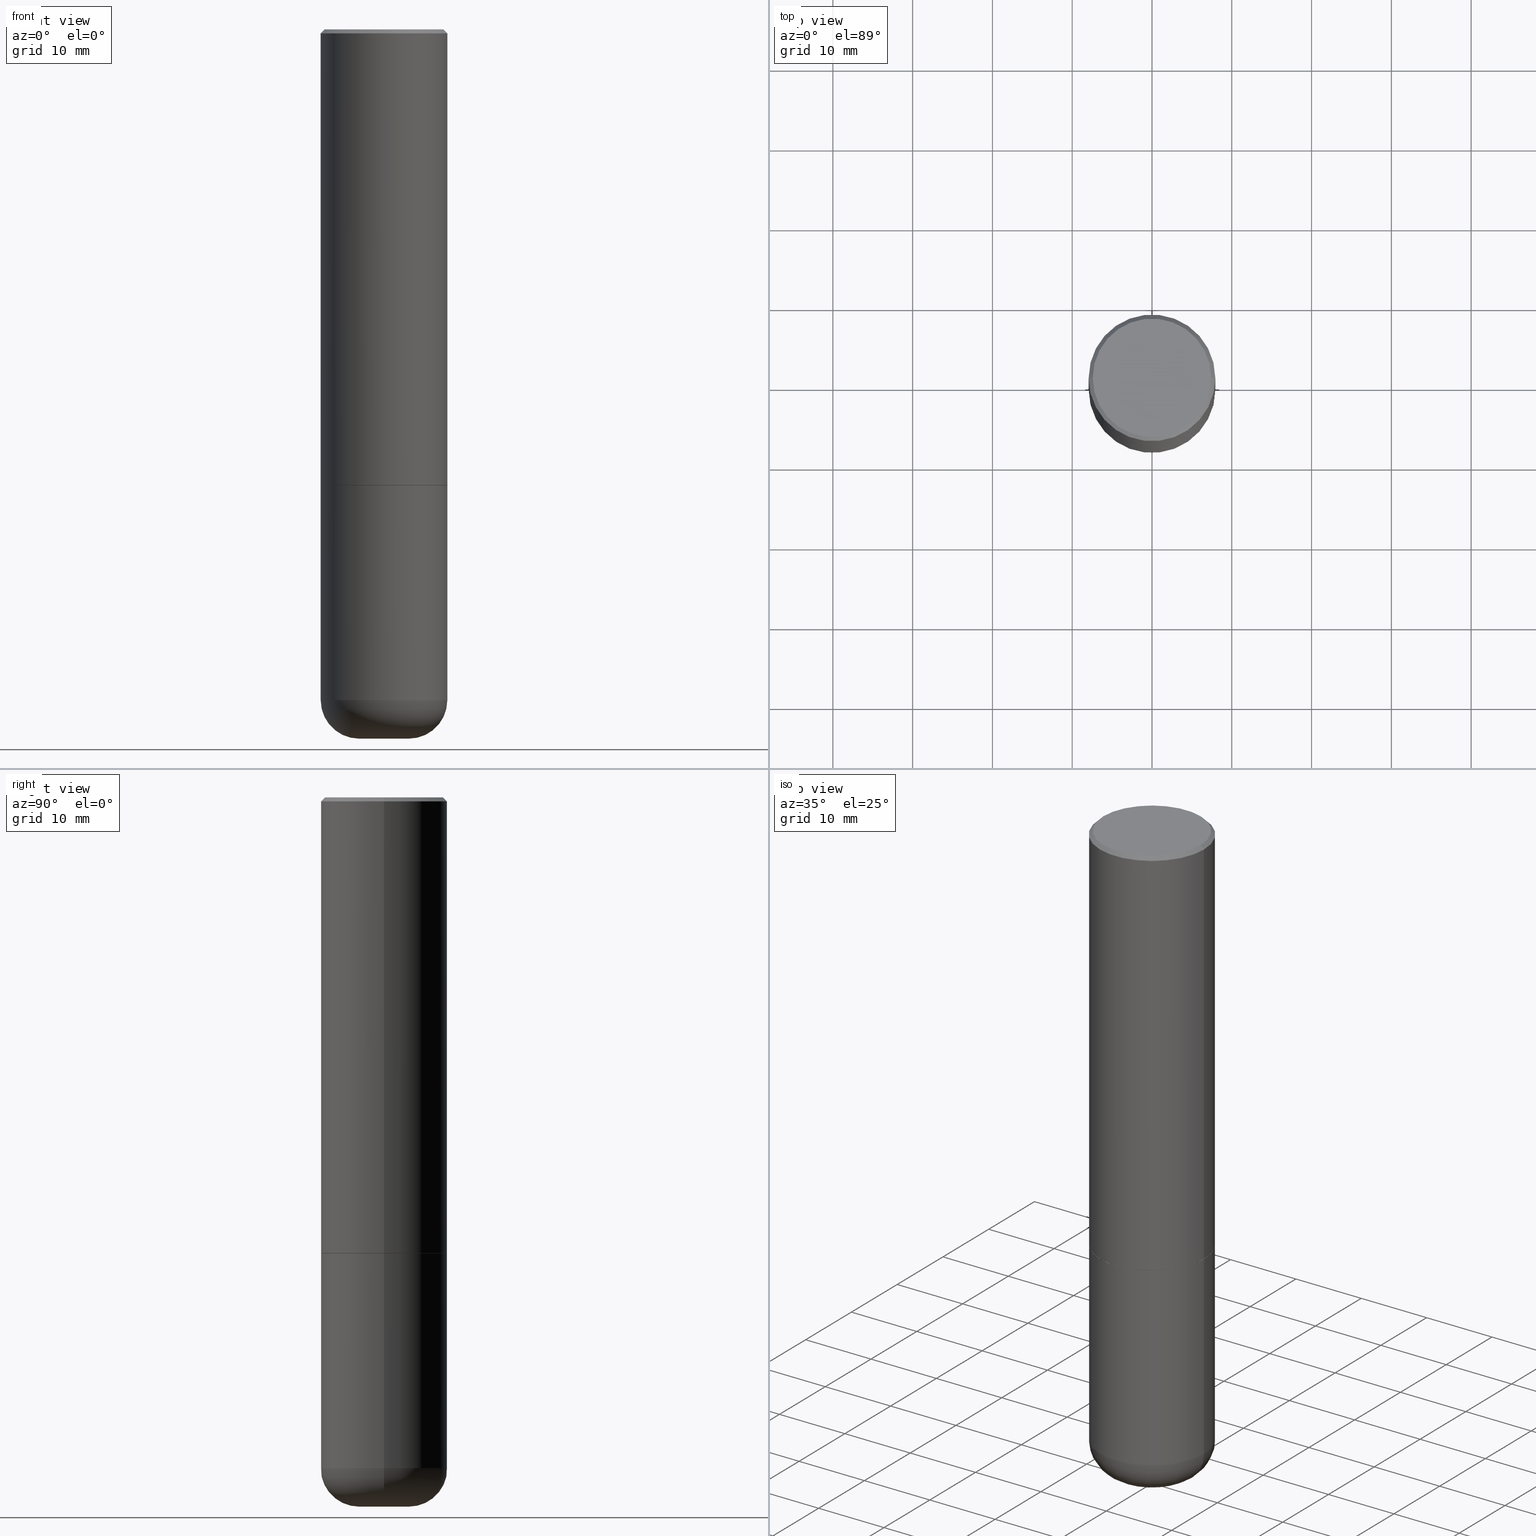
[diagram: canonical four-view strip — front | top / right | iso, engineering-drawing reading convention]
A machine part, canonical four-view strip (front | top / right | iso — engineering-drawing reading convention). The complete STEP part file that produces these views, byte-faithful:
ISO-10303-21;
HEADER;
FILE_DESCRIPTION (( 'STEP AP203' ),
    '1' );
FILE_NAME ('38598.STEP',
    '2024-03-03T07:23:51',
    ( '' ),
    ( '' ),
    'SwSTEP 2.0',
    'SolidWorks 2023',
    '' );
FILE_SCHEMA (( 'CONFIG_CONTROL_DESIGN' ));
ENDSEC;

DATA;
#1 = SECURITY_CLASSIFICATION_LEVEL ( 'unclassified' ) ;
#2 = DIRECTION ( 'NONE',  ( -2.445468806185136597E-29, 3.491481338843145583E-15, 1.000000000000000000 ) ) ;
#3 = EDGE_CURVE ( 'NONE', #142, #86, #51, .T. ) ;
#4 = DIRECTION ( 'NONE',  ( 0.7071067811865476838, -7.319954787623257623E-15, -0.7071067811865473507 ) ) ;
#5 = DIRECTION ( 'NONE',  ( 1.000000000000000000, -6.982962677686265922E-15, 0.000000000000000000 ) ) ;
#6 = CIRCLE ( 'NONE', #236, 0.3125000000000000000 ) ;
#7 = ADVANCED_FACE ( 'NONE', ( #29 ), #354, .T. ) ;
#8 = DIRECTION ( 'NONE',  ( -2.445468806185136877E-29, 3.491481338843145188E-15, 1.000000000000000000 ) ) ;
#9 = EDGE_LOOP ( 'NONE', ( #19, #38, #222, #56 ) ) ;
#10 = CARTESIAN_POINT ( 'NONE',  ( -0.1225000000000000394, -1.034306350848269295E-14, -3.500000000000000000 ) ) ;
#11 = FACE_OUTER_BOUND ( 'NONE', #78, .T. ) ;
#12 = VECTOR ( 'NONE', #136, 39.37007874015748143 ) ;
#13 = LOCAL_TIME ( 2, 23, 51.00000000000000000, #190 ) ;
#14 = DIRECTION ( 'NONE',  ( 0.000000000000000000, 0.000000000000000000, 1.000000000000000000 ) ) ;
#15 = EDGE_CURVE ( 'NONE', #344, #350, #94, .T. ) ;
#16 = LENGTH_MEASURE_WITH_UNIT ( LENGTH_MEASURE( 0.02539999999999999897 ), #49 );
#17 = ORIENTED_EDGE ( 'NONE', *, *, #330, .F. ) ;
#18 = EDGE_LOOP ( 'NONE', ( #175, #412, #89, #285 ) ) ;
#19 = ORIENTED_EDGE ( 'NONE', *, *, #265, .T. ) ;
#20 = DIRECTION ( 'NONE',  ( 1.000000000000000000, -6.982962677686266711E-15, 4.873475059489885184E-29 ) ) ;
#21 = ORIENTED_EDGE ( 'NONE', *, *, #265, .F. ) ;
#22 = PERSON_AND_ORGANIZATION ( #170, #250 ) ;
#23 = EDGE_LOOP ( 'NONE', ( #347, #257, #148, #254 ) ) ;
#24 = APPLICATION_CONTEXT ( 'configuration controlled 3d designs of mechanical parts and assemblies' ) ;
#25 = CC_DESIGN_SECURITY_CLASSIFICATION ( #61, ( #355 ) ) ;
#26 = COORDINATED_UNIVERSAL_TIME_OFFSET ( 5, 0, .BEHIND. ) ;
#27 = CARTESIAN_POINT ( 'NONE',  ( 0.3125000000000002220, -1.003451736783519379E-14, -2.248999999999999666 ) ) ;
#28 = CARTESIAN_POINT ( 'NONE',  ( 8.094501748472800969E-29, -1.155680323157081116E-14, -3.310000000000000053 ) ) ;
#29 = FACE_OUTER_BOUND ( 'NONE', #9, .T. ) ;
#30 = PERSON_AND_ORGANIZATION_ROLE ( 'design_supplier' ) ;
#31 = CIRCLE ( 'NONE', #144, 0.3125000000000002220 ) ;
#32 = CIRCLE ( 'NONE', #346, 0.3125000000000000000 ) ;
#33 = DIRECTION ( 'NONE',  ( -2.445468806185136597E-29, 3.491481338843145583E-15, 1.000000000000000000 ) ) ;
#34 = DIRECTION ( 'NONE',  ( -2.445468806185136597E-29, 3.491481338843145583E-15, 1.000000000000000000 ) ) ;
#35 = CARTESIAN_POINT ( 'NONE',  ( -7.098189617479493761E-45, 1.013433355858703998E-30, 2.902588493268279793E-16 ) ) ;
#36 = CC_DESIGN_PERSON_AND_ORGANIZATION_ASSIGNMENT ( #154, #286, ( #355 ) ) ;
#37 = DIRECTION ( 'NONE',  ( -2.445468806185136597E-29, 3.491481338843145583E-15, 1.000000000000000000 ) ) ;
#38 = ORIENTED_EDGE ( 'NONE', *, *, #413, .T. ) ;
#39 = PLANE ( 'NONE',  #156 ) ;
#40 = CARTESIAN_POINT ( 'NONE',  ( 5.502304813916556222E-29, -7.855833012397076871E-15, -2.249999999999999556 ) ) ;
#41 = EDGE_CURVE ( 'NONE', #182, #218, #295, .T. ) ;
#42 = CARTESIAN_POINT ( 'NONE',  ( -0.3125000000000000000, -9.336357182320498084E-15, -3.310000000000000053 ) ) ;
#43 = AXIS2_PLACEMENT_3D ( 'NONE', #375, #46, #310 ) ;
#44 = DIRECTION ( 'NONE',  ( -2.445468806185136597E-29, 3.491481338843145583E-15, 1.000000000000000000 ) ) ;
#45 = ORIENTED_EDGE ( 'NONE', *, *, #227, .F. ) ;
#46 = DIRECTION ( 'NONE',  ( -2.445468806185136597E-29, 3.491481338843145583E-15, 1.000000000000000000 ) ) ;
#47 = ORIENTED_EDGE ( 'NONE', *, *, #100, .F. ) ;
#48 = APPROVAL ( #353, 'UNSPECIFIED' ) ;
#49 =( LENGTH_UNIT ( ) NAMED_UNIT ( * ) SI_UNIT ( $, .METRE. ) );
#50 = ORIENTED_EDGE ( 'NONE', *, *, #169, .T. ) ;
#51 = CIRCLE ( 'NONE', #269, 0.3124999999999998890 ) ;
#52 = AXIS2_PLACEMENT_3D ( 'NONE', #103, #209, #309 ) ;
#53 = ORIENTED_EDGE ( 'NONE', *, *, #90, .F. ) ;
#54 = APPROVAL_ROLE ( '' ) ;
#55 = EDGE_CURVE ( 'NONE', #283, #344, #106, .T. ) ;
#56 = ORIENTED_EDGE ( 'NONE', *, *, #312, .F. ) ;
#57 = PERSON_AND_ORGANIZATION ( #170, #250 ) ;
#58 = CARTESIAN_POINT ( 'NONE',  ( 8.094501748472800969E-29, -1.155680323157081116E-14, -3.310000000000000053 ) ) ;
#59 = ADVANCED_BREP_SHAPE_REPRESENTATION ( '38598', ( #167, #177, #366 ), #308 ) ;
#60 = AXIS2_PLACEMENT_3D ( 'NONE', #337, #37, #303 ) ;
#61 = SECURITY_CLASSIFICATION ( '', '', #1 ) ;
#62 = DIRECTION ( 'NONE',  ( 1.000000000000000000, -6.982962677686265922E-15, 0.000000000000000000 ) ) ;
#63 = DATE_TIME_ROLE ( 'creation_date' ) ;
#64 = DIRECTION ( 'NONE',  ( -2.445468806185136597E-29, 3.491481338843145583E-15, 1.000000000000000000 ) ) ;
#65 = SHAPE_DEFINITION_REPRESENTATION ( #297, #59 ) ;
#66 = CARTESIAN_POINT ( 'NONE',  ( -0.1225000000000000255, -1.068638838026468806E-14, -3.310000000000000053 ) ) ;
#67 = CONICAL_SURFACE ( 'NONE', #359, 0.3124999999999998890, 0.7853981633974485010 ) ;
#68 = CARTESIAN_POINT ( 'NONE',  ( 5.502304813916556222E-29, -7.855833012397076871E-15, -2.249999999999999556 ) ) ;
#69 = ADVANCED_FACE ( 'NONE', ( #158 ), #415, .F. ) ;
#70 = CARTESIAN_POINT ( 'NONE',  ( 5.502304813916556222E-29, -7.855833012397076871E-15, -2.249999999999999556 ) ) ;
#71 = CARTESIAN_POINT ( 'NONE',  ( 0.3114999999999999991, -1.003102588649634920E-14, -2.249999999999999556 ) ) ;
#72 = DIRECTION ( 'NONE',  ( 2.438088387897960049E-29, -3.491481338843145188E-15, -1.000000000000000000 ) ) ;
#73 = CARTESIAN_POINT ( 'NONE',  ( 5.502304813916556222E-29, -7.855833012397076871E-15, -2.249999999999999556 ) ) ;
#74 = ORIENTED_EDGE ( 'NONE', *, *, #55, .T. ) ;
#75 = CARTESIAN_POINT ( 'NONE',  ( 8.559140821647976968E-29, -1.222018468595100934E-14, -3.500000000000000000 ) ) ;
#76 = DIMENSIONAL_EXPONENTS ( 1.000000000000000000, 0.000000000000000000, 0.000000000000000000, 0.000000000000000000, 0.000000000000000000, 0.000000000000000000, 0.000000000000000000 ) ;
#77 = PERSON_AND_ORGANIZATION ( #170, #250 ) ;
#78 = EDGE_LOOP ( 'NONE', ( #122, #404, #340, #82 ) ) ;
#79 = CONICAL_SURFACE ( 'NONE', #237, 0.3114999999999999991, 0.7853981633975165577 ) ;
#80 = LOCAL_TIME ( 2, 23, 51.00000000000000000, #162 ) ;
#81 = EDGE_CURVE ( 'NONE', #287, #142, #230, .T. ) ;
#82 = ORIENTED_EDGE ( 'NONE', *, *, #188, .F. ) ;
#83 = LINE ( 'NONE', #220, #195 ) ;
#84 = ORIENTED_EDGE ( 'NONE', *, *, #3, .T. ) ;
#85 = DIRECTION ( 'NONE',  ( 1.000000000000000000, -6.982962677686266711E-15, 4.876176775795936353E-29 ) ) ;
#86 = VERTEX_POINT ( 'NONE', #199 ) ;
#87 = TOROIDAL_SURFACE ( 'NONE', #208, 0.1225000000000000255, 0.1899999999999999467 ) ;
#88 =( CONVERSION_BASED_UNIT ( 'INCH', #16 ) LENGTH_UNIT ( ) NAMED_UNIT ( #76 ) );
#89 = ORIENTED_EDGE ( 'NONE', *, *, #110, .T. ) ;
#90 = EDGE_CURVE ( 'NONE', #217, #218, #345, .T. ) ;
#91 = ORIENTED_EDGE ( 'NONE', *, *, #55, .F. ) ;
#92 = CARTESIAN_POINT ( 'NONE',  ( 5.502304813916556222E-29, -7.855833012397076871E-15, -2.249999999999999556 ) ) ;
#93 = TOROIDAL_SURFACE ( 'NONE', #377, 0.1225000000000000255, 0.1899999999999999467 ) ;
#94 = LINE ( 'NONE', #292, #329 ) ;
#95 = CC_DESIGN_PERSON_AND_ORGANIZATION_ASSIGNMENT ( #77, #284, ( #226 ) ) ;
#96 = CALENDAR_DATE ( 2024, 3, 3 ) ;
#97 = DIRECTION ( 'NONE',  ( 1.000000000000000000, -6.982962677686269077E-15, 0.000000000000000000 ) ) ;
#98 = CALENDAR_DATE ( 2024, 3, 3 ) ;
#99 = CARTESIAN_POINT ( 'NONE',  ( 8.094501748472800969E-29, -1.155680323157081116E-14, -3.310000000000000053 ) ) ;
#100 = EDGE_CURVE ( 'NONE', #316, #182, #207, .T. ) ;
#101 = AXIS2_PLACEMENT_3D ( 'NONE', #264, #323, #299 ) ;
#102 = AXIS2_PLACEMENT_3D ( 'NONE', #212, #368, #336 ) ;
#103 = CARTESIAN_POINT ( 'NONE',  ( 5.502304813916556222E-29, -7.855833012397076871E-15, -2.249999999999999556 ) ) ;
#104 = DIRECTION ( 'NONE',  ( 1.000000000000000000, -6.982962677686269077E-15, 0.000000000000000000 ) ) ;
#105 = CARTESIAN_POINT ( 'NONE',  ( 5.499859345110371740E-29, -7.852341531058233864E-15, -2.248999999999999666 ) ) ;
#106 = CIRCLE ( 'NONE', #248, 0.3114999999999999991 ) ;
#107 = DIRECTION ( 'NONE',  ( 1.000000000000000000, -6.982962677686266711E-15, 4.873475059489885184E-29 ) ) ;
#108 = AXIS2_PLACEMENT_3D ( 'NONE', #75, #272, #238 ) ;
#109 = EDGE_LOOP ( 'NONE', ( #47, #372, #278, #409 ) ) ;
#110 = EDGE_CURVE ( 'NONE', #319, #86, #352, .T. ) ;
#111 = CARTESIAN_POINT ( 'NONE',  ( 8.559140821647976968E-29, -1.222018468595100934E-14, -3.500000000000000000 ) ) ;
#112 = ORIENTED_EDGE ( 'NONE', *, *, #15, .T. ) ;
#113 = DIRECTION ( 'NONE',  ( 1.000000000000000000, 0.000000000000000000, 0.000000000000000000 ) ) ;
#114 = EDGE_CURVE ( 'NONE', #350, #119, #31, .T. ) ;
#115 = FACE_OUTER_BOUND ( 'NONE', #23, .T. ) ;
#116 = ORIENTED_EDGE ( 'NONE', *, *, #15, .F. ) ;
#117 = AXIS2_PLACEMENT_3D ( 'NONE', #277, #313, #85 ) ;
#118 = FACE_OUTER_BOUND ( 'NONE', #184, .T. ) ;
#119 = VERTEX_POINT ( 'NONE', #27 ) ;
#120 = DIRECTION ( 'NONE',  ( -2.445468806185136597E-29, 3.491481338843145583E-15, 1.000000000000000000 ) ) ;
#121 = EDGE_LOOP ( 'NONE', ( #74, #112, #21, #17 ) ) ;
#122 = ORIENTED_EDGE ( 'NONE', *, *, #413, .F. ) ;
#123 = CIRCLE ( 'NONE', #172, 0.3125000000000000000 ) ;
#124 = ADVANCED_FACE ( 'NONE', ( #134 ), #93, .T. ) ;
#125 = CIRCLE ( 'NONE', #108, 0.1225000000000000394 ) ;
#126 = ORIENTED_EDGE ( 'NONE', *, *, #406, .F. ) ;
#127 = DATE_AND_TIME ( #291, #173 ) ;
#128 = CARTESIAN_POINT ( 'NONE',  ( 0.3124999999999998890, -2.213735251080466123E-15, -0.02000000000000006981 ) ) ;
#129 = APPROVAL_DATE_TIME ( #351, #130 ) ;
#130 = APPROVAL ( #255, 'UNSPECIFIED' ) ;
#131 = CARTESIAN_POINT ( 'NONE',  ( 5.499859345110371740E-29, -7.852341531058233864E-15, -2.248999999999999666 ) ) ;
#132 = AXIS2_PLACEMENT_3D ( 'NONE', #58, #34, #161 ) ;
#133 = DATE_AND_TIME ( #98, #242 ) ;
#134 = FACE_OUTER_BOUND ( 'NONE', #109, .T. ) ;
#135 = APPROVAL_STATUS ( 'not_yet_approved' ) ;
#136 = DIRECTION ( 'NONE',  ( -2.445468806185136877E-29, 3.491481338843145188E-15, 1.000000000000000000 ) ) ;
#137 = ADVANCED_FACE ( 'NONE', ( #387 ), #203, .F. ) ;
#138 = CARTESIAN_POINT ( 'NONE',  ( 0.000000000000000000, 0.000000000000000000, 0.000000000000000000 ) ) ;
#139 = CLOSED_SHELL ( 'NONE', ( #365, #7, #176, #293, #271, #246, #279, #69 ) ) ;
#140 = AXIS2_PLACEMENT_3D ( 'NONE', #35, #245, #107 ) ;
#141 = CARTESIAN_POINT ( 'NONE',  ( 0.3125000000000000000, -2.182175836776958347E-15, 1.523805242436230075E-29 ) ) ;
#142 = VERTEX_POINT ( 'NONE', #128 ) ;
#143 = DIRECTION ( 'NONE',  ( 0.7071067811865957564, -2.468850131082761932E-15, 0.7071067811864992780 ) ) ;
#144 = AXIS2_PLACEMENT_3D ( 'NONE', #131, #2, #267 ) ;
#145 = DIRECTION ( 'NONE',  ( 1.000000000000000000, -6.982962677686265922E-15, 0.000000000000000000 ) ) ;
#146 = CALENDAR_DATE ( 2024, 3, 3 ) ;
#147 = EDGE_CURVE ( 'NONE', #191, #342, #123, .T. ) ;
#148 = ORIENTED_EDGE ( 'NONE', *, *, #227, .T. ) ;
#149 = APPLICATION_PROTOCOL_DEFINITION ( 'international standard', 'config_control_design', 1994, #24 ) ;
#150 = ORIENTED_EDGE ( 'NONE', *, *, #100, .T. ) ;
#151 = ORIENTED_EDGE ( 'NONE', *, *, #318, .F. ) ;
#152 = CARTESIAN_POINT ( 'NONE',  ( 8.094501748472800969E-29, -1.155680323157081116E-14, -3.310000000000000053 ) ) ;
#153 = ORIENTED_EDGE ( 'NONE', *, *, #81, .T. ) ;
#154 = PERSON_AND_ORGANIZATION ( #170, #250 ) ;
#155 = ORIENTED_EDGE ( 'NONE', *, *, #114, .F. ) ;
#156 = AXIS2_PLACEMENT_3D ( 'NONE', #111, #72, #240 ) ;
#157 = CC_DESIGN_APPROVAL ( #130, ( #181 ) ) ;
#158 = FACE_OUTER_BOUND ( 'NONE', #402, .T. ) ;
#159 = EDGE_CURVE ( 'NONE', #182, #191, #383, .T. ) ;
#160 = PERSON_AND_ORGANIZATION_ROLE ( 'classification_officer' ) ;
#161 = DIRECTION ( 'NONE',  ( 1.000000000000000000, -6.982962677686269077E-15, 0.000000000000000000 ) ) ;
#162 = COORDINATED_UNIVERSAL_TIME_OFFSET ( 5, 0, .BEHIND. ) ;
#163 = CARTESIAN_POINT ( 'NONE',  ( 4.890937612370289799E-31, -6.982962677686315028E-17, -0.02000000000000006981 ) ) ;
#164 = VECTOR ( 'NONE', #4, 39.37007874015748143 ) ;
#165 = CIRCLE ( 'NONE', #397, 0.2924999999999994826 ) ;
#166 = CARTESIAN_POINT ( 'NONE',  ( -0.3125000000000000000, 2.220446049250313081E-15, -1.537167215704658232E-29 ) ) ;
#167 = MANIFOLD_SOLID_BREP ( 'Body-Move/Copy2[1]', #416 ) ;
#168 = ORIENTED_EDGE ( 'NONE', *, *, #259, .T. ) ;
#169 = EDGE_CURVE ( 'NONE', #218, #182, #6, .T. ) ;
#170 = PERSON ( 'UNSPECIFIED', 'UNSPECIFIED', 'UNSPECIFIED', ('UNSPECIFIED'), ('UNSPECIFIED'), ('UNSPECIFIED') ) ;
#171 = DIRECTION ( 'NONE',  ( -2.445468806185136597E-29, 3.491481338843145583E-15, 1.000000000000000000 ) ) ;
#172 = AXIS2_PLACEMENT_3D ( 'NONE', #261, #298, #97 ) ;
#173 = LOCAL_TIME ( 2, 23, 51.00000000000000000, #26 ) ;
#174 = LINE ( 'NONE', #178, #231 ) ;
#175 = ORIENTED_EDGE ( 'NONE', *, *, #81, .F. ) ;
#176 = ADVANCED_FACE ( 'NONE', ( #326 ), #67, .T. ) ;
#177 = MANIFOLD_SOLID_BREP ( 'Body-Move/Copy2[2]', #139 ) ;
#178 = CARTESIAN_POINT ( 'NONE',  ( 0.3125000000000000000, -2.182175836776958347E-15, 1.523805242436230075E-29 ) ) ;
#179 = DIRECTION ( 'NONE',  ( -2.445468806185136597E-29, 3.491481338843145583E-15, 1.000000000000000000 ) ) ;
#180 = CARTESIAN_POINT ( 'NONE',  ( 0.1225000000000000394, -1.307559761396757607E-14, -3.500000000000000000 ) ) ;
#181 = PRODUCT_DEFINITION ( 'UNKNOWN', '', #355, #200 ) ;
#182 = VERTEX_POINT ( 'NONE', #42 ) ;
#183 = DIRECTION ( 'NONE',  ( 1.000000000000000000, -6.982962677686265922E-15, 0.000000000000000000 ) ) ;
#184 = EDGE_LOOP ( 'NONE', ( #50, #282, #151, #45 ) ) ;
#185 = PERSON_AND_ORGANIZATION ( #170, #250 ) ;
#186 = EDGE_LOOP ( 'NONE', ( #376, #126 ) ) ;
#187 = AXIS2_PLACEMENT_3D ( 'NONE', #105, #268, #394 ) ;
#188 = EDGE_CURVE ( 'NONE', #86, #142, #256, .T. ) ;
#189 = ORIENTED_EDGE ( 'NONE', *, *, #389, .F. ) ;
#190 = COORDINATED_UNIVERSAL_TIME_OFFSET ( 5, 0, .BEHIND. ) ;
#191 = VERTEX_POINT ( 'NONE', #204 ) ;
#192 = APPROVAL_DATE_TIME ( #133, #48 ) ;
#193 = DIRECTION ( 'NONE',  ( -2.445468806185136597E-29, 3.491481338843145583E-15, 1.000000000000000000 ) ) ;
#194 = CC_DESIGN_PERSON_AND_ORGANIZATION_ASSIGNMENT ( #22, #232, ( #181 ) ) ;
#195 = VECTOR ( 'NONE', #216, 39.37007874015748143 ) ;
#196 = CARTESIAN_POINT ( 'NONE',  ( 0.000000000000000000, 0.000000000000000000, 0.000000000000000000 ) ) ;
#197 = DIRECTION ( 'NONE',  ( 1.000000000000000000, -6.982962677686269077E-15, 0.000000000000000000 ) ) ;
#198 = COORDINATED_UNIVERSAL_TIME_OFFSET ( 5, 0, .BEHIND. ) ;
#199 = CARTESIAN_POINT ( 'NONE',  ( -0.3124999999999998890, 2.112346210000094260E-15, -0.02000000000000006981 ) ) ;
#200 = DESIGN_CONTEXT ( 'detailed design', #24, 'design' ) ;
#201 = AXIS2_PLACEMENT_3D ( 'NONE', #92, #294, #290 ) ;
#202 = ADVANCED_FACE ( 'NONE', ( #210 ), #39, .T. ) ;
#203 = PLANE ( 'NONE',  #201 ) ;
#204 = CARTESIAN_POINT ( 'NONE',  ( -0.3125000000000000000, -7.485872072733631726E-15, -2.249999999999999556 ) ) ;
#205 = CARTESIAN_POINT ( 'NONE',  ( 0.3114999999999999991, -1.003102588649634920E-14, -2.249999999999999556 ) ) ;
#206 = CC_DESIGN_PERSON_AND_ORGANIZATION_ASSIGNMENT ( #320, #160, ( #61 ) ) ;
#207 = CIRCLE ( 'NONE', #410, 0.1899999999999999745 ) ;
#208 = AXIS2_PLACEMENT_3D ( 'NONE', #152, #224, #343 ) ;
#209 = DIRECTION ( 'NONE',  ( -2.438088387897960049E-29, 3.491481338843145188E-15, 1.000000000000000000 ) ) ;
#210 = FACE_OUTER_BOUND ( 'NONE', #186, .T. ) ;
#211 = ORIENTED_EDGE ( 'NONE', *, *, #147, .T. ) ;
#212 = CARTESIAN_POINT ( 'NONE',  ( 4.890937612370289799E-31, -6.982962677686315028E-17, -0.02000000000000006981 ) ) ;
#213 = CIRCLE ( 'NONE', #241, 0.3114999999999999991 ) ;
#214 = CC_DESIGN_APPROVAL ( #324, ( #61 ) ) ;
#215 = ORIENTED_EDGE ( 'NONE', *, *, #389, .T. ) ;
#216 = DIRECTION ( 'NONE',  ( -2.445468806185136877E-29, 3.491481338843145188E-15, 1.000000000000000000 ) ) ;
#217 = VERTEX_POINT ( 'NONE', #180 ) ;
#218 = VERTEX_POINT ( 'NONE', #306 ) ;
#219 = PRODUCT_RELATED_PRODUCT_CATEGORY ( 'detail', '', ( #226 ) ) ;
#220 = CARTESIAN_POINT ( 'NONE',  ( -0.3125000000000000000, 2.220446049250313081E-15, -1.537167215704658232E-29 ) ) ;
#221 = AXIS2_PLACEMENT_3D ( 'NONE', #380, #228, #233 ) ;
#222 = ORIENTED_EDGE ( 'NONE', *, *, #3, .F. ) ;
#223 = CIRCLE ( 'NONE', #302, 0.1225000000000000394 ) ;
#224 = DIRECTION ( 'NONE',  ( -2.445468806185136597E-29, 3.491481338843145583E-15, 1.000000000000000000 ) ) ;
#225 = EDGE_LOOP ( 'NONE', ( #189, #153, #84, #251 ) ) ;
#226 = PRODUCT ( '38598', '38598', '', ( #315 ) ) ;
#227 = EDGE_CURVE ( 'NONE', #218, #342, #174, .T. ) ;
#228 = DIRECTION ( 'NONE',  ( -6.982962677686266711E-15, -1.000000000000000000, 3.491481338843145583E-15 ) ) ;
#229 = PERSON_AND_ORGANIZATION ( #170, #250 ) ;
#230 = LINE ( 'NONE', #263, #164 ) ;
#231 = VECTOR ( 'NONE', #8, 39.37007874015748143 ) ;
#232 = PERSON_AND_ORGANIZATION_ROLE ( 'creator' ) ;
#233 = DIRECTION ( 'NONE',  ( 1.000000000000000000, -6.982962677686261977E-15, 0.000000000000000000 ) ) ;
#234 = DIRECTION ( 'NONE',  ( -2.445468806185136597E-29, 3.491481338843145583E-15, 1.000000000000000000 ) ) ;
#235 = DIRECTION ( 'NONE',  ( 1.000000000000000000, -6.982962677686266711E-15, 0.000000000000000000 ) ) ;
#236 = AXIS2_PLACEMENT_3D ( 'NONE', #28, #64, #197 ) ;
#237 = AXIS2_PLACEMENT_3D ( 'NONE', #73, #273, #5 ) ;
#238 = DIRECTION ( 'NONE',  ( 1.000000000000000000, -6.982962677686263555E-15, 0.000000000000000000 ) ) ;
#239 = CARTESIAN_POINT ( 'NONE',  ( -0.2924999999999994826, 2.077431396611662611E-15, 2.902588493268135826E-16 ) ) ;
#240 = DIRECTION ( 'NONE',  ( -1.000000000000000000, 6.982962677686265922E-15, -4.876176775795935793E-29 ) ) ;
#241 = AXIS2_PLACEMENT_3D ( 'NONE', #70, #171, #145 ) ;
#242 = LOCAL_TIME ( 2, 23, 51.00000000000000000, #381 ) ;
#243 = CARTESIAN_POINT ( 'NONE',  ( -0.3114999999999999991, -5.637193936156142396E-15, -2.249999999999999556 ) ) ;
#244 = ORIENTED_EDGE ( 'NONE', *, *, #330, .T. ) ;
#245 = DIRECTION ( 'NONE',  ( -2.445468806185136597E-29, 3.491481338843145583E-15, 1.000000000000000000 ) ) ;
#246 = ADVANCED_FACE ( 'NONE', ( #363 ), #79, .T. ) ;
#247 = CARTESIAN_POINT ( 'NONE',  ( -0.3125000000000002220, -1.740639529667230767E-15, -2.248999999999999666 ) ) ;
#248 = AXIS2_PLACEMENT_3D ( 'NONE', #68, #234, #62 ) ;
#249 = DIRECTION ( 'NONE',  ( 1.000000000000000000, -6.982962677686263555E-15, 0.000000000000000000 ) ) ;
#250 = ORGANIZATION ( 'UNSPECIFIED', 'UNSPECIFIED', '' ) ;
#251 = ORIENTED_EDGE ( 'NONE', *, *, #110, .F. ) ;
#252 = FACE_OUTER_BOUND ( 'NONE', #121, .T. ) ;
#253 = ORIENTED_EDGE ( 'NONE', *, *, #169, .F. ) ;
#254 = ORIENTED_EDGE ( 'NONE', *, *, #147, .F. ) ;
#255 = APPROVAL_STATUS ( 'not_yet_approved' ) ;
#256 = CIRCLE ( 'NONE', #60, 0.3124999999999998890 ) ;
#257 = ORIENTED_EDGE ( 'NONE', *, *, #41, .T. ) ;
#258 = VECTOR ( 'NONE', #305, 39.37007874015748143 ) ;
#259 = EDGE_CURVE ( 'NONE', #344, #283, #213, .T. ) ;
#260 = ORIENTED_EDGE ( 'NONE', *, *, #300, .T. ) ;
#261 = CARTESIAN_POINT ( 'NONE',  ( 5.502304813916556222E-29, -7.855833012397076871E-15, -2.249999999999999556 ) ) ;
#262 = APPROVAL_DATE_TIME ( #127, #324 ) ;
#263 = CARTESIAN_POINT ( 'NONE',  ( 0.3124999999999998890, -2.213735251080466123E-15, -0.02000000000000006981 ) ) ;
#264 = CARTESIAN_POINT ( 'NONE',  ( 2.042516583223229384E-15, 0.2924999999999994826, -8.761288669482044248E-16 ) ) ;
#265 = EDGE_CURVE ( 'NONE', #119, #350, #334, .T. ) ;
#266 = DATE_TIME_ROLE ( 'classification_date' ) ;
#267 = DIRECTION ( 'NONE',  ( 1.000000000000000000, -6.982962677686266711E-15, 0.000000000000000000 ) ) ;
#268 = DIRECTION ( 'NONE',  ( -2.445468806185136597E-29, 3.491481338843145583E-15, 1.000000000000000000 ) ) ;
#269 = AXIS2_PLACEMENT_3D ( 'NONE', #163, #193, #235 ) ;
#270 = VECTOR ( 'NONE', #143, 39.37007874015748143 ) ;
#271 = ADVANCED_FACE ( 'NONE', ( #11 ), #333, .T. ) ;
#272 = DIRECTION ( 'NONE',  ( -2.445468806185136597E-29, 3.491481338843145583E-15, 1.000000000000000000 ) ) ;
#273 = DIRECTION ( 'NONE',  ( -2.445468806185136597E-29, 3.491481338843145583E-15, 1.000000000000000000 ) ) ;
#274 = CARTESIAN_POINT ( 'NONE',  ( 0.3125000000000000000, -1.003800884917403522E-14, -2.249999999999999556 ) ) ;
#275 = CARTESIAN_POINT ( 'NONE',  ( 0.2924999999999994826, -2.110215457714317564E-15, 2.902588493268424746E-16 ) ) ;
#276 = EDGE_CURVE ( 'NONE', #319, #287, #322, .T. ) ;
#277 = CARTESIAN_POINT ( 'NONE',  ( 0.000000000000000000, 0.000000000000000000, 0.000000000000000000 ) ) ;
#278 = ORIENTED_EDGE ( 'NONE', *, *, #90, .T. ) ;
#279 = ADVANCED_FACE ( 'NONE', ( #301 ), #390, .F. ) ;
#280 =( NAMED_UNIT ( * ) SI_UNIT ( $, .STERADIAN. ) SOLID_ANGLE_UNIT ( ) );
#281 = AXIS2_PLACEMENT_3D ( 'NONE', #339, #405, #183 ) ;
#282 = ORIENTED_EDGE ( 'NONE', *, *, #159, .T. ) ;
#283 = VERTEX_POINT ( 'NONE', #205 ) ;
#284 = PERSON_AND_ORGANIZATION_ROLE ( 'design_owner' ) ;
#285 = ORIENTED_EDGE ( 'NONE', *, *, #188, .T. ) ;
#286 = PERSON_AND_ORGANIZATION_ROLE ( 'creator' ) ;
#287 = VERTEX_POINT ( 'NONE', #275 ) ;
#288 = APPROVAL_PERSON_ORGANIZATION ( #57, #48, #325 ) ;
#289 = DATE_AND_TIME ( #96, #80 ) ;
#290 = DIRECTION ( 'NONE',  ( -1.000000000000000000, 6.982962677686265922E-15, -4.876176775795935793E-29 ) ) ;
#291 = CALENDAR_DATE ( 2024, 3, 3 ) ;
#292 = CARTESIAN_POINT ( 'NONE',  ( -0.3114999999999999991, -5.642492390504364798E-15, -2.249999999999999556 ) ) ;
#293 = ADVANCED_FACE ( 'NONE', ( #335 ), #296, .T. ) ;
#294 = DIRECTION ( 'NONE',  ( 2.438088387897960049E-29, -3.491481338843145188E-15, -1.000000000000000000 ) ) ;
#295 = CIRCLE ( 'NONE', #132, 0.3125000000000000000 ) ;
#296 = CONICAL_SURFACE ( 'NONE', #102, 0.3124999999999998890, 0.7853981633974485010 ) ;
#297 = PRODUCT_DEFINITION_SHAPE ( 'NONE', 'NONE',  #181 ) ;
#298 = DIRECTION ( 'NONE',  ( -2.445468806185136597E-29, 3.491481338843145583E-15, 1.000000000000000000 ) ) ;
#299 = DIRECTION ( 'NONE',  ( -1.000000000000000000, 6.982962677686265922E-15, -4.876176775795935793E-29 ) ) ;
#300 = EDGE_CURVE ( 'NONE', #217, #316, #125, .T. ) ;
#301 = FACE_OUTER_BOUND ( 'NONE', #304, .T. ) ;
#302 = AXIS2_PLACEMENT_3D ( 'NONE', #408, #120, #249 ) ;
#303 = DIRECTION ( 'NONE',  ( 1.000000000000000000, -6.982962677686266711E-15, 0.000000000000000000 ) ) ;
#304 = EDGE_LOOP ( 'NONE', ( #91, #407 ) ) ;
#305 = DIRECTION ( 'NONE',  ( -2.445468806185136877E-29, 3.491481338843145188E-15, 1.000000000000000000 ) ) ;
#306 = CARTESIAN_POINT ( 'NONE',  ( 0.3125000000000000000, -1.373897906834776951E-14, -3.310000000000000053 ) ) ;
#307 = VECTOR ( 'NONE', #328, 39.37007874015748143 ) ;
#308 =( GEOMETRIC_REPRESENTATION_CONTEXT ( 3 ) GLOBAL_UNCERTAINTY_ASSIGNED_CONTEXT ( ( #369 ) ) GLOBAL_UNIT_ASSIGNED_CONTEXT ( ( #88, #400, #280 ) ) REPRESENTATION_CONTEXT ( 'NONE', 'WORKASPACE' ) );
#309 = DIRECTION ( 'NONE',  ( 1.000000000000000000, -6.982962677686265922E-15, 4.876176775795935793E-29 ) ) ;
#310 = DIRECTION ( 'NONE',  ( 1.000000000000000000, -6.982962677686266711E-15, 4.876176775795936353E-29 ) ) ;
#311 = EDGE_LOOP ( 'NONE', ( #116, #168, #244, #155 ) ) ;
#312 = EDGE_CURVE ( 'NONE', #119, #142, #361, .T. ) ;
#313 = DIRECTION ( 'NONE',  ( -2.445468806185136597E-29, 3.491481338843145583E-15, 1.000000000000000000 ) ) ;
#314 = EDGE_LOOP ( 'NONE', ( #373, #211 ) ) ;
#315 = MECHANICAL_CONTEXT ( 'NONE', #395, 'mechanical' ) ;
#316 = VERTEX_POINT ( 'NONE', #10 ) ;
#317 = DATE_AND_TIME ( #384, #338 ) ;
#318 = EDGE_CURVE ( 'NONE', #342, #191, #32, .T. ) ;
#319 = VERTEX_POINT ( 'NONE', #239 ) ;
#320 = PERSON_AND_ORGANIZATION ( #170, #250 ) ;
#321 = DIRECTION ( 'NONE',  ( 7.105427357601001859E-15, 1.000000000000000000, -3.491481338843145583E-15 ) ) ;
#322 = CIRCLE ( 'NONE', #140, 0.2924999999999994826 ) ;
#323 = DIRECTION ( 'NONE',  ( 2.438088387897960049E-29, -3.491481338843145188E-15, -1.000000000000000000 ) ) ;
#324 = APPROVAL ( #135, 'UNSPECIFIED' ) ;
#325 = APPROVAL_ROLE ( '' ) ;
#326 = FACE_OUTER_BOUND ( 'NONE', #225, .T. ) ;
#327 = PERSON_AND_ORGANIZATION ( #170, #250 ) ;
#328 = DIRECTION ( 'NONE',  ( -0.7071067811865476838, 2.468850131082258638E-15, -0.7071067811865473507 ) ) ;
#329 = VECTOR ( 'NONE', #357, 39.37007874015748143 ) ;
#330 = EDGE_CURVE ( 'NONE', #283, #119, #362, .T. ) ;
#331 = DIRECTION ( 'NONE',  ( -2.445468806185136597E-29, 3.491481338843145583E-15, 1.000000000000000000 ) ) ;
#332 = DIRECTION ( 'NONE',  ( 2.445468806185136597E-29, -3.491481338843145583E-15, -1.000000000000000000 ) ) ;
#333 = CYLINDRICAL_SURFACE ( 'NONE', #403, 0.3125000000000000000 ) ;
#334 = CIRCLE ( 'NONE', #187, 0.3125000000000002220 ) ;
#335 = FACE_OUTER_BOUND ( 'NONE', #18, .T. ) ;
#336 = DIRECTION ( 'NONE',  ( -1.000000000000000000, 6.982962677686266711E-15, 0.000000000000000000 ) ) ;
#337 = CARTESIAN_POINT ( 'NONE',  ( 4.890937612370289799E-31, -6.982962677686315028E-17, -0.02000000000000006981 ) ) ;
#338 = LOCAL_TIME ( 2, 23, 51.00000000000000000, #198 ) ;
#339 = CARTESIAN_POINT ( 'NONE',  ( 5.502304813916556222E-29, -7.855833012397076871E-15, -2.249999999999999556 ) ) ;
#340 = ORIENTED_EDGE ( 'NONE', *, *, #312, .T. ) ;
#341 = CYLINDRICAL_SURFACE ( 'NONE', #117, 0.3125000000000000000 ) ;
#342 = VERTEX_POINT ( 'NONE', #274 ) ;
#343 = DIRECTION ( 'NONE',  ( 1.000000000000000000, -6.982962677686269077E-15, 4.883557194083114022E-29 ) ) ;
#344 = VERTEX_POINT ( 'NONE', #243 ) ;
#345 = CIRCLE ( 'NONE', #221, 0.1899999999999999745 ) ;
#346 = AXIS2_PLACEMENT_3D ( 'NONE', #40, #392, #104 ) ;
#347 = ORIENTED_EDGE ( 'NONE', *, *, #159, .F. ) ;
#348 = ADVANCED_FACE ( 'NONE', ( #367 ), #87, .T. ) ;
#349 = APPLICATION_PROTOCOL_DEFINITION ( 'international standard', 'config_control_design', 1994, #395 ) ;
#350 = VERTEX_POINT ( 'NONE', #247 ) ;
#351 = DATE_AND_TIME ( #146, #13 ) ;
#352 = LINE ( 'NONE', #388, #307 ) ;
#353 = APPROVAL_STATUS ( 'not_yet_approved' ) ;
#354 = CYLINDRICAL_SURFACE ( 'NONE', #364, 0.3125000000000000000 ) ;
#355 = PRODUCT_DEFINITION_FORMATION_WITH_SPECIFIED_SOURCE ( 'ANY', '', #226, .NOT_KNOWN. ) ;
#356 = CC_DESIGN_DATE_AND_TIME_ASSIGNMENT ( #289, #63, ( #181 ) ) ;
#357 = DIRECTION ( 'NONE',  ( -0.7071067811865957564, 7.493145998870527710E-15, 0.7071067811864992780 ) ) ;
#358 = DIRECTION ( 'NONE',  ( 1.000000000000000000, -6.982962677686266711E-15, 4.876176775795936353E-29 ) ) ;
#359 = AXIS2_PLACEMENT_3D ( 'NONE', #417, #332, #398 ) ;
#360 = CC_DESIGN_APPROVAL ( #48, ( #355 ) ) ;
#361 = LINE ( 'NONE', #141, #258 ) ;
#362 = LINE ( 'NONE', #71, #270 ) ;
#363 = FACE_OUTER_BOUND ( 'NONE', #311, .T. ) ;
#364 = AXIS2_PLACEMENT_3D ( 'NONE', #196, #331, #358 ) ;
#365 = ADVANCED_FACE ( 'NONE', ( #252 ), #411, .T. ) ;
#366 = AXIS2_PLACEMENT_3D ( 'NONE', #378, #14, #113 ) ;
#367 = FACE_OUTER_BOUND ( 'NONE', #379, .T. ) ;
#368 = DIRECTION ( 'NONE',  ( 2.445468806185136597E-29, -3.491481338843145583E-15, -1.000000000000000000 ) ) ;
#369 = UNCERTAINTY_MEASURE_WITH_UNIT (LENGTH_MEASURE( 1.000000000000000082E-05 ), #88, 'distance_accuracy_value', 'NONE');
#370 = ADVANCED_FACE ( 'NONE', ( #118 ), #401, .T. ) ;
#371 = CARTESIAN_POINT ( 'NONE',  ( -7.098189617479493761E-45, 1.013433355858703998E-30, 2.902588493268279793E-16 ) ) ;
#372 = ORIENTED_EDGE ( 'NONE', *, *, #406, .T. ) ;
#373 = ORIENTED_EDGE ( 'NONE', *, *, #318, .T. ) ;
#374 = ORIENTED_EDGE ( 'NONE', *, *, #276, .T. ) ;
#375 = CARTESIAN_POINT ( 'NONE',  ( 0.000000000000000000, 0.000000000000000000, 0.000000000000000000 ) ) ;
#376 = ORIENTED_EDGE ( 'NONE', *, *, #300, .F. ) ;
#377 = AXIS2_PLACEMENT_3D ( 'NONE', #99, #33, #414 ) ;
#378 = CARTESIAN_POINT ( 'NONE',  ( 0.000000000000000000, 0.000000000000000000, 0.000000000000000000 ) ) ;
#379 = EDGE_LOOP ( 'NONE', ( #260, #150, #253, #53 ) ) ;
#380 = CARTESIAN_POINT ( 'NONE',  ( 0.1225000000000000255, -1.241221615958737947E-14, -3.310000000000000053 ) ) ;
#381 = COORDINATED_UNIVERSAL_TIME_OFFSET ( 5, 0, .BEHIND. ) ;
#382 = CC_DESIGN_PERSON_AND_ORGANIZATION_ASSIGNMENT ( #327, #30, ( #355 ) ) ;
#383 = LINE ( 'NONE', #166, #12 ) ;
#384 = CALENDAR_DATE ( 2024, 3, 3 ) ;
#385 = DIRECTION ( 'NONE',  ( -1.000000000000000000, 7.105427357600998703E-15, 0.000000000000000000 ) ) ;
#386 = APPROVAL_ROLE ( '' ) ;
#387 = FACE_OUTER_BOUND ( 'NONE', #314, .T. ) ;
#388 = CARTESIAN_POINT ( 'NONE',  ( -0.3124999999999998890, 2.112346210000094260E-15, -0.02000000000000006981 ) ) ;
#389 = EDGE_CURVE ( 'NONE', #287, #319, #165, .T. ) ;
#390 = PLANE ( 'NONE',  #52 ) ;
#391 = APPROVAL_PERSON_ORGANIZATION ( #229, #324, #386 ) ;
#392 = DIRECTION ( 'NONE',  ( -2.445468806185136597E-29, 3.491481338843145583E-15, 1.000000000000000000 ) ) ;
#393 = CC_DESIGN_DATE_AND_TIME_ASSIGNMENT ( #317, #266, ( #61 ) ) ;
#394 = DIRECTION ( 'NONE',  ( 1.000000000000000000, -6.982962677686266711E-15, 0.000000000000000000 ) ) ;
#395 = APPLICATION_CONTEXT ( 'configuration controlled 3d designs of mechanical parts and assemblies' ) ;
#396 = DIRECTION ( 'NONE',  ( 1.000000000000000000, -6.982962677686266711E-15, 4.876176775795936353E-29 ) ) ;
#397 = AXIS2_PLACEMENT_3D ( 'NONE', #371, #44, #20 ) ;
#398 = DIRECTION ( 'NONE',  ( -1.000000000000000000, 6.982962677686266711E-15, 0.000000000000000000 ) ) ;
#399 = ADVANCED_FACE ( 'NONE', ( #115 ), #341, .T. ) ;
#400 =( NAMED_UNIT ( * ) PLANE_ANGLE_UNIT ( ) SI_UNIT ( $, .RADIAN. ) );
#401 = CYLINDRICAL_SURFACE ( 'NONE', #43, 0.3125000000000000000 ) ;
#402 = EDGE_LOOP ( 'NONE', ( #374, #215 ) ) ;
#403 = AXIS2_PLACEMENT_3D ( 'NONE', #138, #179, #396 ) ;
#404 = ORIENTED_EDGE ( 'NONE', *, *, #114, .T. ) ;
#405 = DIRECTION ( 'NONE',  ( -2.445468806185136597E-29, 3.491481338843145583E-15, 1.000000000000000000 ) ) ;
#406 = EDGE_CURVE ( 'NONE', #316, #217, #223, .T. ) ;
#407 = ORIENTED_EDGE ( 'NONE', *, *, #259, .F. ) ;
#408 = CARTESIAN_POINT ( 'NONE',  ( 8.559140821647976968E-29, -1.222018468595100934E-14, -3.500000000000000000 ) ) ;
#409 = ORIENTED_EDGE ( 'NONE', *, *, #41, .F. ) ;
#410 = AXIS2_PLACEMENT_3D ( 'NONE', #66, #321, #385 ) ;
#411 = CONICAL_SURFACE ( 'NONE', #281, 0.3114999999999999991, 0.7853981633975165577 ) ;
#412 = ORIENTED_EDGE ( 'NONE', *, *, #276, .F. ) ;
#413 = EDGE_CURVE ( 'NONE', #350, #86, #83, .T. ) ;
#414 = DIRECTION ( 'NONE',  ( 1.000000000000000000, -6.982962677686269077E-15, 4.883557194083114022E-29 ) ) ;
#415 = PLANE ( 'NONE',  #101 ) ;
#416 = CLOSED_SHELL ( 'NONE', ( #370, #348, #137, #399, #124, #202 ) ) ;
#417 = CARTESIAN_POINT ( 'NONE',  ( 4.890937612370289799E-31, -6.982962677686315028E-17, -0.02000000000000006981 ) ) ;
#418 = APPROVAL_PERSON_ORGANIZATION ( #185, #130, #54 ) ;
ENDSEC;
END-ISO-10303-21;
